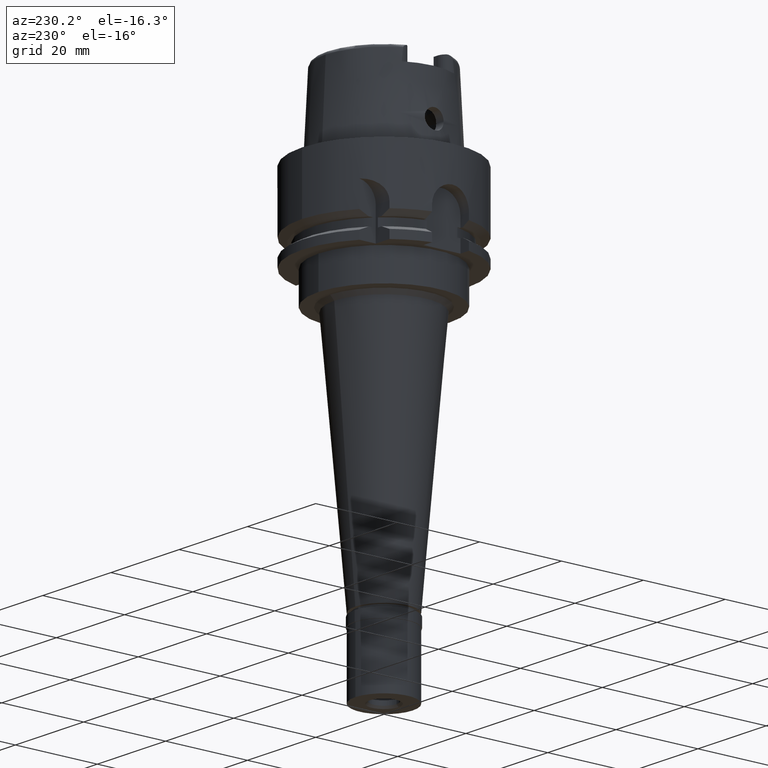
[diagram: clean part render]
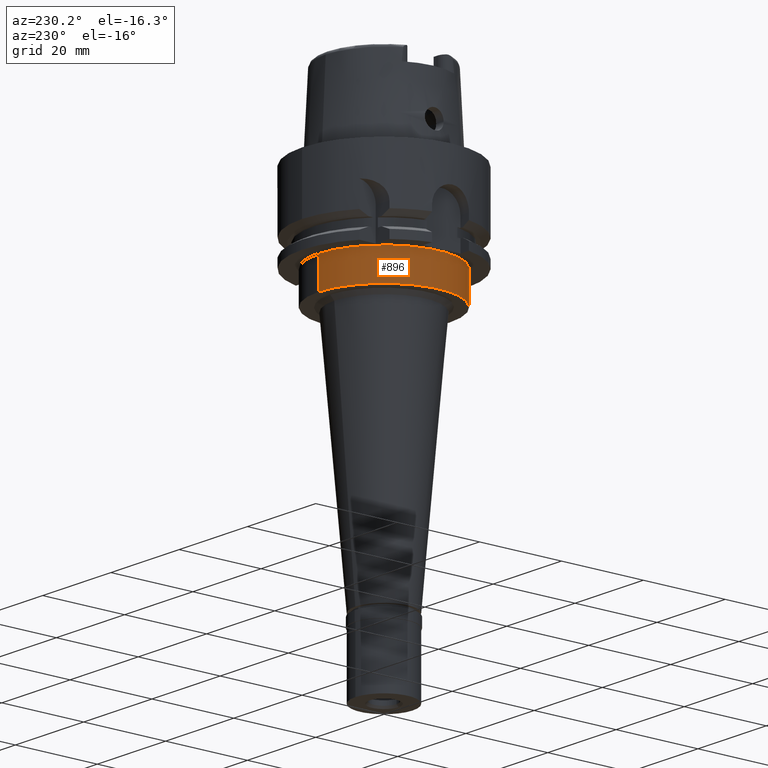
[diagram: same view with one face highlighted and labeled with its STEP entity id]
A machine part, auxiliary view. The second image highlights one B-rep face of the part: STEP entity #896.
In plain terms, the highlighted cylindrical surface (partial cylindrical patch) has radius 16 mm, axis along (0, 0, -1).
Its self-contained STEP definition (entity closure, byte-faithful):
#102 = CIRCLE ( 'NONE', #4832, 16.00000000000000000 ) ;
#119 = DIRECTION ( 'NONE',  ( 0.0000000000000000000, 0.0000000000000000000, -1.000000000000000000 ) ) ;
#306 = EDGE_CURVE ( 'NONE', #4466, #2734, #4636, .T. ) ;
#595 = FACE_OUTER_BOUND ( 'NONE', #1603, .T. ) ;
#750 = AXIS2_PLACEMENT_3D ( 'NONE', #4616, #119, #2959 ) ;
#874 = VERTEX_POINT ( 'NONE', #971 ) ;
#896 = ADVANCED_FACE ( 'NONE', ( #595 ), #3379, .T. ) ;
#966 = CARTESIAN_POINT ( 'NONE',  ( 0.0000000000000000000, 1.543667290324999758E-14, -20.00000000000000000 ) ) ;
#971 = CARTESIAN_POINT ( 'NONE',  ( 0.0000000000000000000, 16.00000000000000000, -20.00000000000000000 ) ) ;
#1200 = VERTEX_POINT ( 'NONE', #1242 ) ;
#1242 = CARTESIAN_POINT ( 'NONE',  ( 0.0000000000000000000, -16.00000000000000000, -20.00000000000000000 ) ) ;
#1411 = LINE ( 'NONE', #2603, #4173 ) ;
#1583 = ORIENTED_EDGE ( 'NONE', *, *, #4931, .F. ) ;
#1603 = EDGE_LOOP ( 'NONE', ( #4806, #1583, #2682, #3012 ) ) ;
#1614 = EDGE_CURVE ( 'NONE', #874, #4466, #3583, .T. ) ;
#1848 = AXIS2_PLACEMENT_3D ( 'NONE', #2238, #4670, #2963 ) ;
#2180 = CARTESIAN_POINT ( 'NONE',  ( 0.0000000000000000000, -16.00000000000000000, -27.50000000000000000 ) ) ;
#2238 = CARTESIAN_POINT ( 'NONE',  ( 0.0000000000000000000, 1.543667290324999758E-14, -27.50000000000000000 ) ) ;
#2496 = DIRECTION ( 'NONE',  ( 0.0000000000000000000, -1.000000000000000000, 0.0000000000000000000 ) ) ;
#2603 = CARTESIAN_POINT ( 'NONE',  ( 0.0000000000000000000, -16.00000000000000000, -20.00000000000000000 ) ) ;
#2682 = ORIENTED_EDGE ( 'NONE', *, *, #4704, .T. ) ;
#2734 = VERTEX_POINT ( 'NONE', #2180 ) ;
#2959 = DIRECTION ( 'NONE',  ( 0.0000000000000000000, -1.000000000000000000, 0.0000000000000000000 ) ) ;
#2963 = DIRECTION ( 'NONE',  ( 0.0000000000000000000, 1.000000000000000000, 0.0000000000000000000 ) ) ;
#3012 = ORIENTED_EDGE ( 'NONE', *, *, #1614, .T. ) ;
#3067 = VECTOR ( 'NONE', #5187, 1000.000000000000000 ) ;
#3379 = CYLINDRICAL_SURFACE ( 'NONE', #750, 16.00000000000000000 ) ;
#3583 = LINE ( 'NONE', #5217, #3067 ) ;
#4173 = VECTOR ( 'NONE', #4291, 1000.000000000000000 ) ;
#4291 = DIRECTION ( 'NONE',  ( 0.0000000000000000000, 0.0000000000000000000, -1.000000000000000000 ) ) ;
#4466 = VERTEX_POINT ( 'NONE', #5109 ) ;
#4538 = DIRECTION ( 'NONE',  ( 0.0000000000000000000, 0.0000000000000000000, -1.000000000000000000 ) ) ;
#4616 = CARTESIAN_POINT ( 'NONE',  ( 0.0000000000000000000, 1.543667290324999758E-14, 26.05000000000000071 ) ) ;
#4636 = CIRCLE ( 'NONE', #1848, 16.00000000000000000 ) ;
#4670 = DIRECTION ( 'NONE',  ( 0.0000000000000000000, 0.0000000000000000000, 1.000000000000000000 ) ) ;
#4704 = EDGE_CURVE ( 'NONE', #1200, #874, #102, .T. ) ;
#4806 = ORIENTED_EDGE ( 'NONE', *, *, #306, .T. ) ;
#4832 = AXIS2_PLACEMENT_3D ( 'NONE', #966, #4538, #2496 ) ;
#4931 = EDGE_CURVE ( 'NONE', #1200, #2734, #1411, .T. ) ;
#5109 = CARTESIAN_POINT ( 'NONE',  ( 0.0000000000000000000, 16.00000000000000000, -27.50000000000000000 ) ) ;
#5187 = DIRECTION ( 'NONE',  ( 0.0000000000000000000, 0.0000000000000000000, -1.000000000000000000 ) ) ;
#5217 = CARTESIAN_POINT ( 'NONE',  ( 0.0000000000000000000, 16.00000000000000000, -20.00000000000000000 ) ) ;